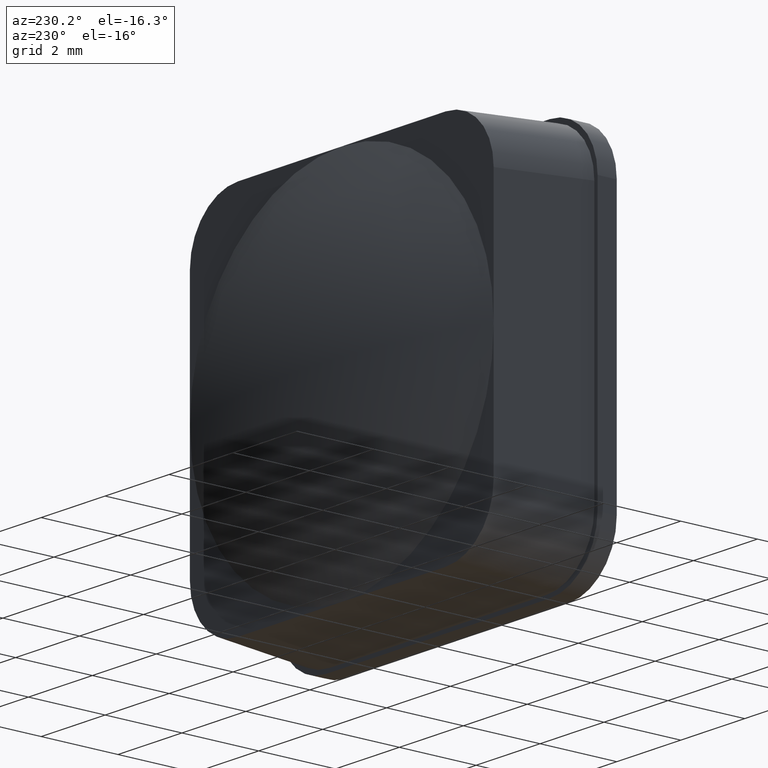
[diagram: clean part render]
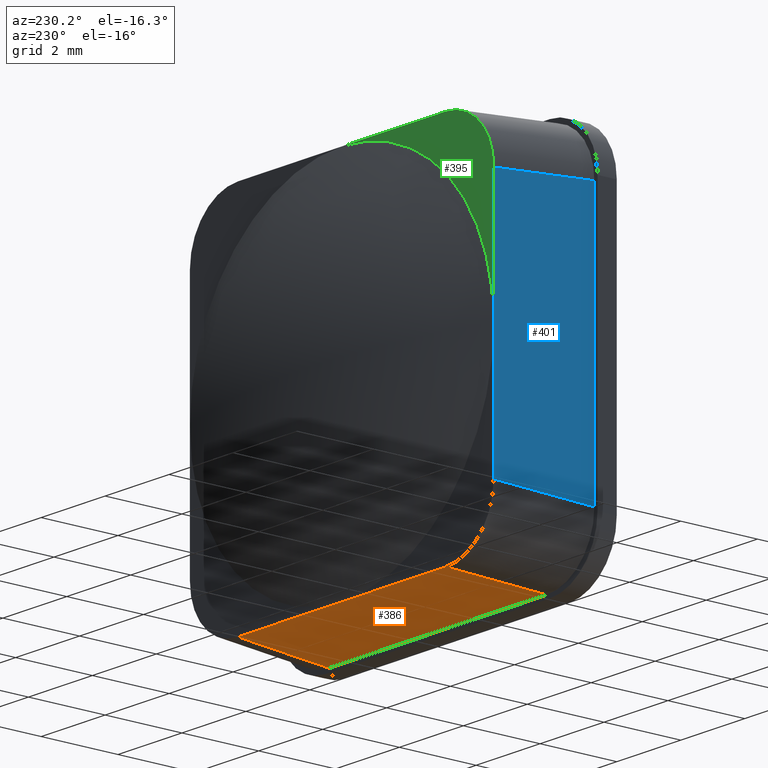
[diagram: same view with three faces highlighted in distinct colors, each labeled with its STEP entity id]
A machine part, auxiliary view with three faces highlighted in distinct colors.
Their STEP definitions:

[orange] entity #386 — the highlighted planar face has unit normal (-0, 0.0599, -0.9982).
#27=PLANE('',#418);
#43=FACE_OUTER_BOUND('',#66,.T.);
#66=EDGE_LOOP('',(#282,#283,#284,#285,#286));
#94=LINE('',#607,#130);
#96=LINE('',#613,#132);
#97=LINE('',#615,#133);
#98=LINE('',#617,#134);
#99=LINE('',#618,#135);
#130=VECTOR('',#480,2.50898385805888);
#132=VECTOR('',#486,3.25269273180133);
#133=VECTOR('',#487,3.25269273180133);
#134=VECTOR('',#488,2.50898385805888);
#135=VECTOR('',#489,6.80538546360266);
#182=VERTEX_POINT('',#604);
#183=VERTEX_POINT('',#606);
#185=VERTEX_POINT('',#612);
#186=VERTEX_POINT('',#614);
#187=VERTEX_POINT('',#616);
#220=EDGE_CURVE('',#182,#183,#94,.T.);
#223=EDGE_CURVE('',#182,#185,#96,.T.);
#224=EDGE_CURVE('',#185,#186,#97,.T.);
#225=EDGE_CURVE('',#187,#186,#98,.T.);
#226=EDGE_CURVE('',#183,#187,#99,.T.);
#282=ORIENTED_EDGE('',*,*,#220,.F.);
#283=ORIENTED_EDGE('',*,*,#223,.T.);
#284=ORIENTED_EDGE('',*,*,#224,.T.);
#285=ORIENTED_EDGE('',*,*,#225,.F.);
#286=ORIENTED_EDGE('',*,*,#226,.F.);
#386=ADVANCED_FACE('',(#43),#27,.T.);
#418=AXIS2_PLACEMENT_3D('',#611,#484,#485);
#480=DIRECTION('',(-0.0597851594454064,-0.996419324090101,-0.0597851594454059));
#484=DIRECTION('center_axis',(-6.09056418481003E-16,0.0598922907279466,
-0.998204845465779));
#485=DIRECTION('ref_axis',(-1.,0.,6.21724893790088E-16));
#486=DIRECTION('',(1.,0.,5.84327907697451E-17));
#487=DIRECTION('',(1.,0.,5.84327907697451E-17));
#488=DIRECTION('',(-0.0597851594454067,0.996419324090101,0.059785159445406));
#489=DIRECTION('',(1.,0.,-6.10151735134893E-16));
#604=CARTESIAN_POINT('',(-3.25269273180133,2.5,-4.75));
#606=CARTESIAN_POINT('',(-3.40269273180133,2.77555756156289E-16,-4.9));
#607=CARTESIAN_POINT('',(-3.2410667450713,2.69376644550048,-4.73837401326997));
#611=CARTESIAN_POINT('Origin',(-4.75,2.5,-4.75));
#612=CARTESIAN_POINT('',(4.5682297313471E-16,2.5,-4.75));
#613=CARTESIAN_POINT('',(-4.75,2.5,-4.75));
#614=CARTESIAN_POINT('',(3.25269273180133,2.5,-4.75));
#615=CARTESIAN_POINT('',(-4.75,2.5,-4.75));
#616=CARTESIAN_POINT('',(3.40269273180133,2.77555756156289E-16,-4.90000000000001));
#617=CARTESIAN_POINT('',(3.2410667450713,2.69376644550048,-4.73837401326998));
#618=CARTESIAN_POINT('',(-2.375,2.77555756156289E-16,-4.9));

[blue] entity #401 — the highlighted planar face has unit normal (-0.9982, 0.0599, 0).
#35=PLANE('',#446);
#58=FACE_OUTER_BOUND('',#81,.T.);
#81=EDGE_LOOP('',(#345,#346,#347,#348,#349));
#95=LINE('',#610,#131);
#100=LINE('',#621,#136);
#111=LINE('',#658,#147);
#114=LINE('',#666,#150);
#119=LINE('',#684,#155);
#131=VECTOR('',#483,2.50898385805888);
#136=VECTOR('',#492,3.25269273180133);
#147=VECTOR('',#531,2.50898385805888);
#150=VECTOR('',#540,3.25269273180133);
#155=VECTOR('',#565,6.80538546360266);
#181=VERTEX_POINT('',#603);
#184=VERTEX_POINT('',#608);
#188=VERTEX_POINT('',#620);
#199=VERTEX_POINT('',#655);
#200=VERTEX_POINT('',#657);
#222=EDGE_CURVE('',#184,#181,#95,.T.);
#227=EDGE_CURVE('',#188,#181,#100,.T.);
#245=EDGE_CURVE('',#199,#200,#111,.T.);
#250=EDGE_CURVE('',#199,#188,#114,.T.);
#259=EDGE_CURVE('',#200,#184,#119,.T.);
#345=ORIENTED_EDGE('',*,*,#222,.F.);
#346=ORIENTED_EDGE('',*,*,#259,.F.);
#347=ORIENTED_EDGE('',*,*,#245,.F.);
#348=ORIENTED_EDGE('',*,*,#250,.T.);
#349=ORIENTED_EDGE('',*,*,#227,.T.);
#401=ADVANCED_FACE('',(#58),#35,.T.);
#446=AXIS2_PLACEMENT_3D('',#683,#563,#564);
#483=DIRECTION('',(0.0597851594454064,0.996419324090101,0.0597851594454059));
#492=DIRECTION('',(-1.1686558153949E-16,0.,-1.));
#531=DIRECTION('',(-0.0597851594454063,-0.996419324090101,0.0597851594454061));
#540=DIRECTION('',(-1.1686558153949E-16,0.,-1.));
#563=DIRECTION('center_axis',(-0.998204845465779,0.059892290727947,8.30531479746822E-17));
#564=DIRECTION('ref_axis',(8.88178419700125E-17,0.,1.));
#565=DIRECTION('',(-8.32025093365763E-17,0.,-1.));
#603=CARTESIAN_POINT('',(-4.75,2.5,-3.25269273180133));
#608=CARTESIAN_POINT('',(-4.9,2.77555756156289E-16,-3.40269273180133));
#610=CARTESIAN_POINT('',(-4.73837401326997,2.69376644550048,-3.2410667450713));
#620=CARTESIAN_POINT('',(-4.75,2.5,0.));
#621=CARTESIAN_POINT('',(-4.75,2.5,4.75));
#655=CARTESIAN_POINT('',(-4.75,2.5,3.25269273180133));
#657=CARTESIAN_POINT('',(-4.9,2.77555756156289E-16,3.40269273180133));
#658=CARTESIAN_POINT('',(-4.73837401326997,2.69376644550048,3.2410667450713));
#666=CARTESIAN_POINT('',(-4.75,2.5,4.75));
#683=CARTESIAN_POINT('Origin',(-4.75,2.5,4.75));
#684=CARTESIAN_POINT('',(-4.9,2.77555756156289E-16,2.375));

[green] entity #395 — the highlighted planar face has unit normal (0, 1, 0).
#21=ELLIPSE('',#433,1.50539031483533,1.5);
#32=PLANE('',#435);
#52=FACE_OUTER_BOUND('',#75,.T.);
#75=EDGE_LOOP('',(#320,#321,#322,#323));
#113=LINE('',#664,#149);
#114=LINE('',#666,#150);
#149=VECTOR('',#537,3.25269273180133);
#150=VECTOR('',#540,3.25269273180133);
#167=CIRCLE('',#436,4.75000000000002);
#188=VERTEX_POINT('',#620);
#198=VERTEX_POINT('',#654);
#199=VERTEX_POINT('',#655);
#202=VERTEX_POINT('',#663);
#244=EDGE_CURVE('',#198,#199,#21,.T.);
#248=EDGE_CURVE('',#202,#198,#113,.T.);
#249=EDGE_CURVE('',#202,#188,#167,.T.);
#250=EDGE_CURVE('',#199,#188,#114,.T.);
#320=ORIENTED_EDGE('',*,*,#244,.F.);
#321=ORIENTED_EDGE('',*,*,#248,.F.);
#322=ORIENTED_EDGE('',*,*,#249,.T.);
#323=ORIENTED_EDGE('',*,*,#250,.F.);
#395=ADVANCED_FACE('',(#52),#32,.T.);
#433=AXIS2_PLACEMENT_3D('',#656,#529,#530);
#435=AXIS2_PLACEMENT_3D('',#662,#535,#536);
#436=AXIS2_PLACEMENT_3D('',#665,#538,#539);
#529=DIRECTION('center_axis',(0.,-1.,0.));
#530=DIRECTION('ref_axis',(-0.707106781186547,0.,0.707106781186548));
#535=DIRECTION('center_axis',(0.,1.,0.));
#536=DIRECTION('ref_axis',(0.,0.,1.));
#537=DIRECTION('',(-1.,0.,-1.1686558153949E-16));
#538=DIRECTION('center_axis',(0.,-1.,0.));
#539=DIRECTION('ref_axis',(0.,0.,-1.));
#540=DIRECTION('',(-1.1686558153949E-16,0.,-1.));
#620=CARTESIAN_POINT('',(-4.75,2.5,0.));
#654=CARTESIAN_POINT('',(-3.25269273180133,2.5,4.75));
#655=CARTESIAN_POINT('',(-4.75,2.5,3.25269273180133));
#656=CARTESIAN_POINT('Origin',(-3.24730242563582,2.5,3.24730242563581));
#662=CARTESIAN_POINT('Origin',(1.38777878078145E-16,2.5,-2.01858731750028E-16));
#663=CARTESIAN_POINT('',(-6.53400051490447E-16,2.5,4.75));
#664=CARTESIAN_POINT('',(4.75,2.5,4.75));
#665=CARTESIAN_POINT('Origin',(-9.82885391778683E-17,2.5,0.));
#666=CARTESIAN_POINT('',(-4.75,2.5,4.75));